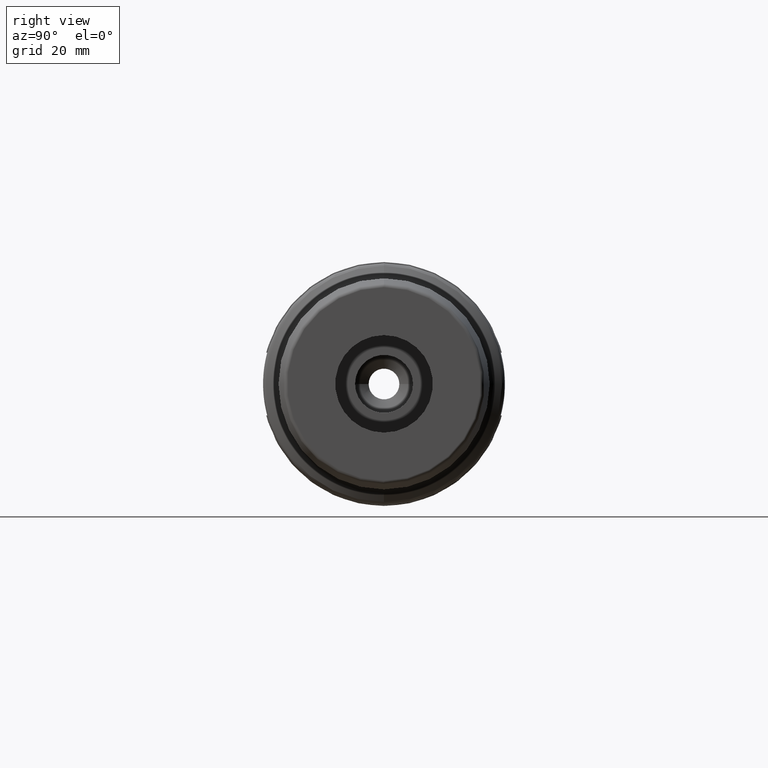
[diagram: clean part render]
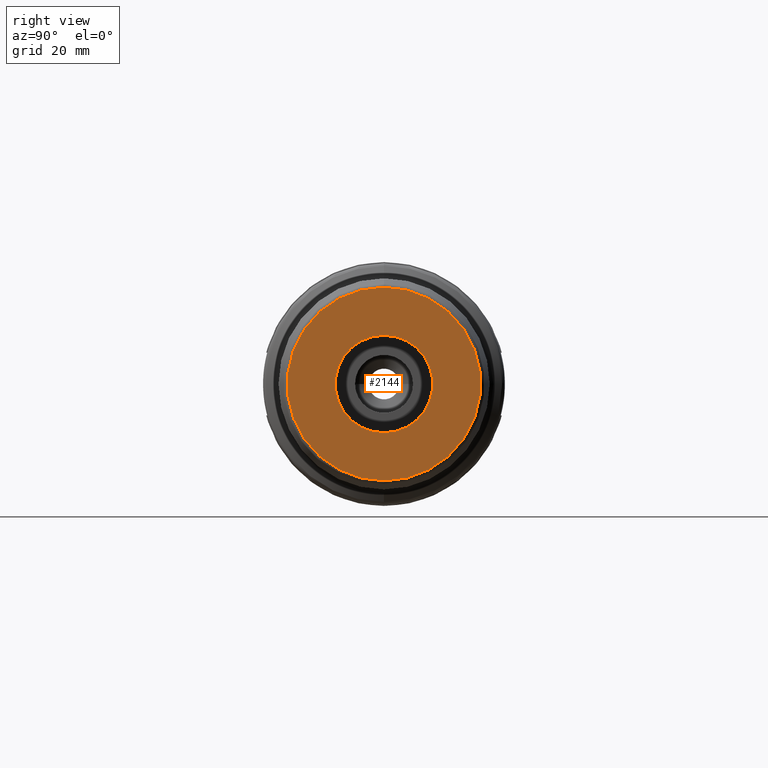
[diagram: same view with one face highlighted and labeled with its STEP entity id]
A machine part, right view. The second image highlights one B-rep face of the part: STEP entity #2144.
In plain terms, the highlighted planar face has unit normal (1, 0, 0).
Its self-contained STEP definition (entity closure, byte-faithful):
#232=CARTESIAN_POINT('',(1.E2,0.E0,0.E0));
#233=DIRECTION('',(-1.E0,0.E0,0.E0));
#234=DIRECTION('',(0.E0,0.E0,-1.E0));
#235=AXIS2_PLACEMENT_3D('',#232,#233,#234);
#237=CARTESIAN_POINT('',(1.E2,0.E0,0.E0));
#238=DIRECTION('',(1.E0,0.E0,0.E0));
#239=DIRECTION('',(0.E0,0.E0,-1.E0));
#240=AXIS2_PLACEMENT_3D('',#237,#238,#239);
#242=CARTESIAN_POINT('',(1.E2,0.E0,0.E0));
#243=DIRECTION('',(1.E0,0.E0,0.E0));
#244=DIRECTION('',(0.E0,0.E0,-1.E0));
#245=AXIS2_PLACEMENT_3D('',#242,#243,#244);
#257=CARTESIAN_POINT('',(1.E2,0.E0,0.E0));
#258=DIRECTION('',(-1.E0,0.E0,0.E0));
#259=DIRECTION('',(0.E0,0.E0,-1.E0));
#260=AXIS2_PLACEMENT_3D('',#257,#258,#259);
#1592=CARTESIAN_POINT('',(1.E2,0.E0,-1.27E1));
#1594=VERTEX_POINT('',#1592);
#1595=CARTESIAN_POINT('',(1.E2,0.E0,-2.521090036882E1));
#1597=VERTEX_POINT('',#1595);
#1646=CARTESIAN_POINT('',(1.E2,0.E0,1.27E1));
#1648=VERTEX_POINT('',#1646);
#1649=CARTESIAN_POINT('',(1.E2,0.E0,2.521090036882E1));
#1651=VERTEX_POINT('',#1649);
#2129=CARTESIAN_POINT('',(1.E2,0.E0,0.E0));
#2130=DIRECTION('',(1.E0,0.E0,0.E0));
#2131=DIRECTION('',(0.E0,0.E0,1.E0));
#2132=AXIS2_PLACEMENT_3D('',#2129,#2130,#2131);
#2133=PLANE('',#2132);
#2135=ORIENTED_EDGE('',*,*,#2134,.F.);
#2137=ORIENTED_EDGE('',*,*,#2136,.T.);
#2138=EDGE_LOOP('',(#2135,#2137));
#2139=FACE_OUTER_BOUND('',#2138,.F.);
#2140=ORIENTED_EDGE('',*,*,#2122,.F.);
#2141=ORIENTED_EDGE('',*,*,#2111,.T.);
#2142=EDGE_LOOP('',(#2140,#2141));
#2143=FACE_BOUND('',#2142,.F.);
#2144=ADVANCED_FACE('',(#2139,#2143),#2133,.T.);
#236=CIRCLE('',#235,1.27E1);
#241=CIRCLE('',#240,1.27E1);
#246=CIRCLE('',#245,2.521090036882E1);
#261=CIRCLE('',#260,2.521090036882E1);
#2111=EDGE_CURVE('',#1594,#1648,#241,.T.);
#2122=EDGE_CURVE('',#1594,#1648,#236,.T.);
#2134=EDGE_CURVE('',#1597,#1651,#246,.T.);
#2136=EDGE_CURVE('',#1597,#1651,#261,.T.);